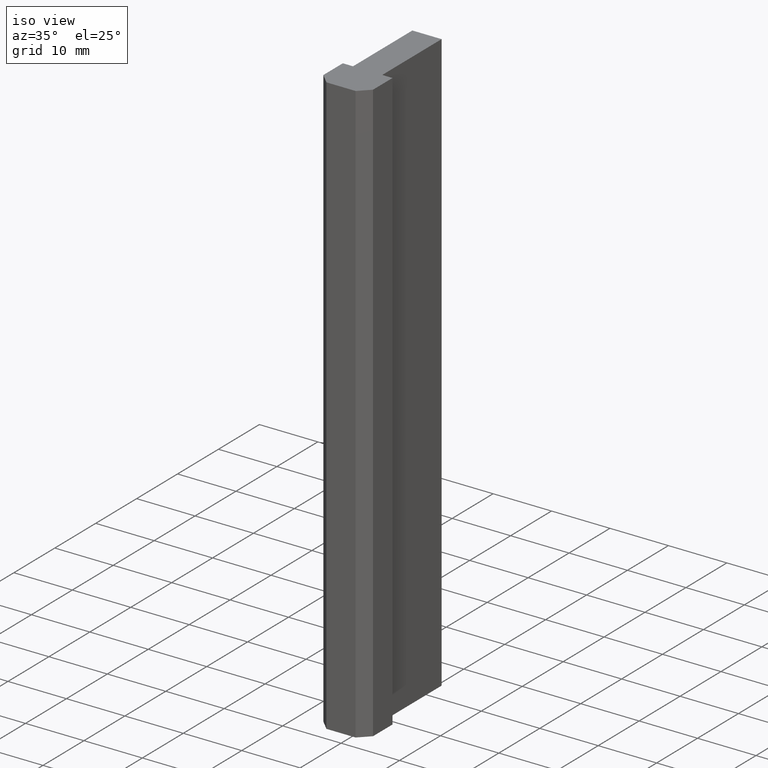
[diagram: clean part render]
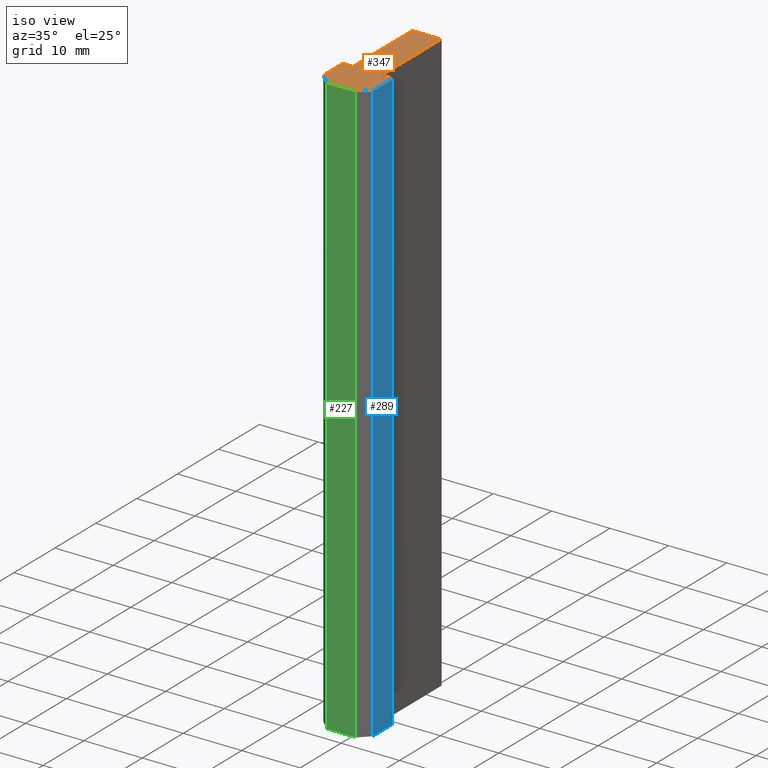
[diagram: same view with three faces highlighted in distinct colors, each labeled with its STEP entity id]
A machine part, iso view with three faces highlighted in distinct colors.
Their STEP definitions:

[orange] entity #347 — the highlighted planar face has unit normal (0, 0, 1).
#17=CARTESIAN_POINT('',(2.499999999989996,20.999999999915872,100.0));
#18=VERTEX_POINT('',#17);
#25=CARTESIAN_POINT('',(2.499999999989996,6.499999999974079,100.0));
#26=VERTEX_POINT('',#25);
#27=CARTESIAN_POINT('',(2.499999999989996,6.499999999973861,100.0));
#28=DIRECTION('',(0.0,1.0,0.0));
#29=VECTOR('',#28,14.499999999942011);
#30=LINE('',#27,#29);
#31=EDGE_CURVE('',#26,#18,#30,.T.);
#55=CARTESIAN_POINT('',(-2.499999999989996,20.999999999915872,100.0));
#56=VERTEX_POINT('',#55);
#63=CARTESIAN_POINT('',(2.499999999990005,20.999999999915872,100.0));
#64=DIRECTION('',(-1.0,0.0,0.0));
#65=VECTOR('',#64,4.999999999980001);
#66=LINE('',#63,#65);
#67=EDGE_CURVE('',#18,#56,#66,.T.);
#86=CARTESIAN_POINT('',(-2.499999999989541,6.499999999974079,100.0));
#87=VERTEX_POINT('',#86);
#94=CARTESIAN_POINT('',(-2.499999999989996,20.999999999916056,100.0));
#95=DIRECTION('',(0.0,-1.0,0.0));
#96=VECTOR('',#95,14.499999999941977);
#97=LINE('',#94,#96);
#98=EDGE_CURVE('',#56,#87,#97,.T.);
#117=CARTESIAN_POINT('',(-4.249999999982720,6.499999999974079,100.0));
#118=VERTEX_POINT('',#117);
#125=CARTESIAN_POINT('',(-2.499999999989726,6.499999999974079,100.0));
#126=DIRECTION('',(-1.0,0.0,0.0));
#127=VECTOR('',#126,1.749999999992993);
#128=LINE('',#125,#127);
#129=EDGE_CURVE('',#87,#118,#128,.T.);
#148=CARTESIAN_POINT('',(-4.249999999983174,1.749999999993179,100.0));
#149=VERTEX_POINT('',#148);
#156=CARTESIAN_POINT('',(-4.249999999982720,6.499999999974201,100.0));
#157=DIRECTION('',(0.0,-1.0,0.0));
#158=VECTOR('',#157,4.749999999981022);
#159=LINE('',#156,#158);
#160=EDGE_CURVE('',#118,#149,#159,.T.);
#179=CARTESIAN_POINT('',(-2.499999999989996,0.0,100.0));
#180=VERTEX_POINT('',#179);
#187=CARTESIAN_POINT('',(-4.249999999983007,1.749999999993011,100.0));
#188=DIRECTION('',(0.707106781186548,-0.707106781186547,0.0));
#189=VECTOR('',#188,2.474873734143033);
#190=LINE('',#187,#189);
#191=EDGE_CURVE('',#149,#180,#190,.T.);
#210=CARTESIAN_POINT('',(2.499999999989996,0.0,100.0));
#211=VERTEX_POINT('',#210);
#218=CARTESIAN_POINT('',(-2.499999999990005,0.0,100.0));
#219=DIRECTION('',(1.0,0.0,0.0));
#220=VECTOR('',#219,4.999999999980001);
#221=LINE('',#218,#220);
#222=EDGE_CURVE('',#180,#211,#221,.T.);
#241=CARTESIAN_POINT('',(4.249999999983174,1.749999999993179,100.0));
#242=VERTEX_POINT('',#241);
#249=CARTESIAN_POINT('',(2.499999999990163,1.674216E-013,100.0));
#250=DIRECTION('',(0.707106781186547,0.707106781186547,0.0));
#251=VECTOR('',#250,2.474873734143033);
#252=LINE('',#249,#251);
#253=EDGE_CURVE('',#211,#242,#252,.T.);
#272=CARTESIAN_POINT('',(4.249999999983174,6.499999999974079,100.0));
#273=VERTEX_POINT('',#272);
#280=CARTESIAN_POINT('',(4.249999999983174,1.749999999993057,100.0));
#281=DIRECTION('',(0.0,1.0,0.0));
#282=VECTOR('',#281,4.749999999981022);
#283=LINE('',#280,#282);
#284=EDGE_CURVE('',#242,#273,#283,.T.);
#302=CARTESIAN_POINT('',(4.249999999983007,6.499999999974079,100.0));
#303=DIRECTION('',(-1.0,0.0,0.0));
#304=VECTOR('',#303,1.749999999993011);
#305=LINE('',#302,#304);
#306=EDGE_CURVE('',#273,#26,#305,.T.);
#330=CARTESIAN_POINT('',(-5.100004733335027,-2.100004733335027,100.0));
#331=DIRECTION('',(0.0,0.0,1.0));
#332=DIRECTION('',(1.0,0.0,0.0));
#333=AXIS2_PLACEMENT_3D('',#330,#331,#332);
#334=PLANE('',#333);
#335=ORIENTED_EDGE('',*,*,#31,.T.);
#336=ORIENTED_EDGE('',*,*,#67,.T.);
#337=ORIENTED_EDGE('',*,*,#98,.T.);
#338=ORIENTED_EDGE('',*,*,#129,.T.);
#339=ORIENTED_EDGE('',*,*,#160,.T.);
#340=ORIENTED_EDGE('',*,*,#191,.T.);
#341=ORIENTED_EDGE('',*,*,#222,.T.);
#342=ORIENTED_EDGE('',*,*,#253,.T.);
#343=ORIENTED_EDGE('',*,*,#284,.T.);
#344=ORIENTED_EDGE('',*,*,#306,.T.);
#345=EDGE_LOOP('',(#335,#336,#337,#338,#339,#340,#341,#342,#343,#344));
#346=FACE_OUTER_BOUND('',#345,.T.);
#347=ADVANCED_FACE('',(#346),#334,.T.);

[blue] entity #289 — the highlighted planar face has unit normal (1, 0, 0).
#233=CARTESIAN_POINT('',(4.249999999983174,1.749999999993179,0.0));
#234=VERTEX_POINT('',#233);
#241=CARTESIAN_POINT('',(4.249999999983174,1.749999999993179,100.0));
#242=VERTEX_POINT('',#241);
#243=CARTESIAN_POINT('',(4.249999999983174,1.749999999993179,0.0));
#244=DIRECTION('',(0.0,0.0,1.0));
#245=VECTOR('',#244,100.0);
#246=LINE('',#243,#245);
#247=EDGE_CURVE('',#234,#242,#246,.T.);
#259=CARTESIAN_POINT('',(4.249999999983174,1.749999999993179,0.0));
#260=DIRECTION('',(1.0,0.0,0.0));
#261=DIRECTION('',(0.0,1.0,0.0));
#262=AXIS2_PLACEMENT_3D('',#259,#260,#261);
#263=PLANE('',#262);
#264=CARTESIAN_POINT('',(4.249999999983174,6.499999999974079,0.0));
#265=VERTEX_POINT('',#264);
#266=CARTESIAN_POINT('',(4.249999999983174,1.749999999993057,0.0));
#267=DIRECTION('',(0.0,1.0,0.0));
#268=VECTOR('',#267,4.749999999981022);
#269=LINE('',#266,#268);
#270=EDGE_CURVE('',#234,#265,#269,.T.);
#271=ORIENTED_EDGE('',*,*,#270,.T.);
#272=CARTESIAN_POINT('',(4.249999999983174,6.499999999974079,100.0));
#273=VERTEX_POINT('',#272);
#274=CARTESIAN_POINT('',(4.249999999983174,6.499999999974079,0.0));
#275=DIRECTION('',(0.0,0.0,1.0));
#276=VECTOR('',#275,100.0);
#277=LINE('',#274,#276);
#278=EDGE_CURVE('',#265,#273,#277,.T.);
#279=ORIENTED_EDGE('',*,*,#278,.T.);
#280=CARTESIAN_POINT('',(4.249999999983174,1.749999999993057,100.0));
#281=DIRECTION('',(0.0,1.0,0.0));
#282=VECTOR('',#281,4.749999999981022);
#283=LINE('',#280,#282);
#284=EDGE_CURVE('',#242,#273,#283,.T.);
#285=ORIENTED_EDGE('',*,*,#284,.F.);
#286=ORIENTED_EDGE('',*,*,#247,.F.);
#287=EDGE_LOOP('',(#271,#279,#285,#286));
#288=FACE_OUTER_BOUND('',#287,.T.);
#289=ADVANCED_FACE('',(#288),#263,.T.);

[green] entity #227 — the highlighted planar face has unit normal (0, -1, 0).
#171=CARTESIAN_POINT('',(-2.499999999989996,0.0,0.0));
#172=VERTEX_POINT('',#171);
#179=CARTESIAN_POINT('',(-2.499999999989996,0.0,100.0));
#180=VERTEX_POINT('',#179);
#181=CARTESIAN_POINT('',(-2.499999999989996,0.0,0.0));
#182=DIRECTION('',(0.0,0.0,1.0));
#183=VECTOR('',#182,100.0);
#184=LINE('',#181,#183);
#185=EDGE_CURVE('',#172,#180,#184,.T.);
#197=CARTESIAN_POINT('',(-2.499999999989996,0.0,0.0));
#198=DIRECTION('',(0.0,-1.0,0.0));
#199=DIRECTION('',(1.0,0.0,0.0));
#200=AXIS2_PLACEMENT_3D('',#197,#198,#199);
#201=PLANE('',#200);
#202=CARTESIAN_POINT('',(2.499999999989996,0.0,0.0));
#203=VERTEX_POINT('',#202);
#204=CARTESIAN_POINT('',(-2.499999999990005,0.0,0.0));
#205=DIRECTION('',(1.0,0.0,0.0));
#206=VECTOR('',#205,4.999999999980001);
#207=LINE('',#204,#206);
#208=EDGE_CURVE('',#172,#203,#207,.T.);
#209=ORIENTED_EDGE('',*,*,#208,.T.);
#210=CARTESIAN_POINT('',(2.499999999989996,0.0,100.0));
#211=VERTEX_POINT('',#210);
#212=CARTESIAN_POINT('',(2.499999999989996,0.0,0.0));
#213=DIRECTION('',(0.0,0.0,1.0));
#214=VECTOR('',#213,100.0);
#215=LINE('',#212,#214);
#216=EDGE_CURVE('',#203,#211,#215,.T.);
#217=ORIENTED_EDGE('',*,*,#216,.T.);
#218=CARTESIAN_POINT('',(-2.499999999990005,0.0,100.0));
#219=DIRECTION('',(1.0,0.0,0.0));
#220=VECTOR('',#219,4.999999999980001);
#221=LINE('',#218,#220);
#222=EDGE_CURVE('',#180,#211,#221,.T.);
#223=ORIENTED_EDGE('',*,*,#222,.F.);
#224=ORIENTED_EDGE('',*,*,#185,.F.);
#225=EDGE_LOOP('',(#209,#217,#223,#224));
#226=FACE_OUTER_BOUND('',#225,.T.);
#227=ADVANCED_FACE('',(#226),#201,.T.);